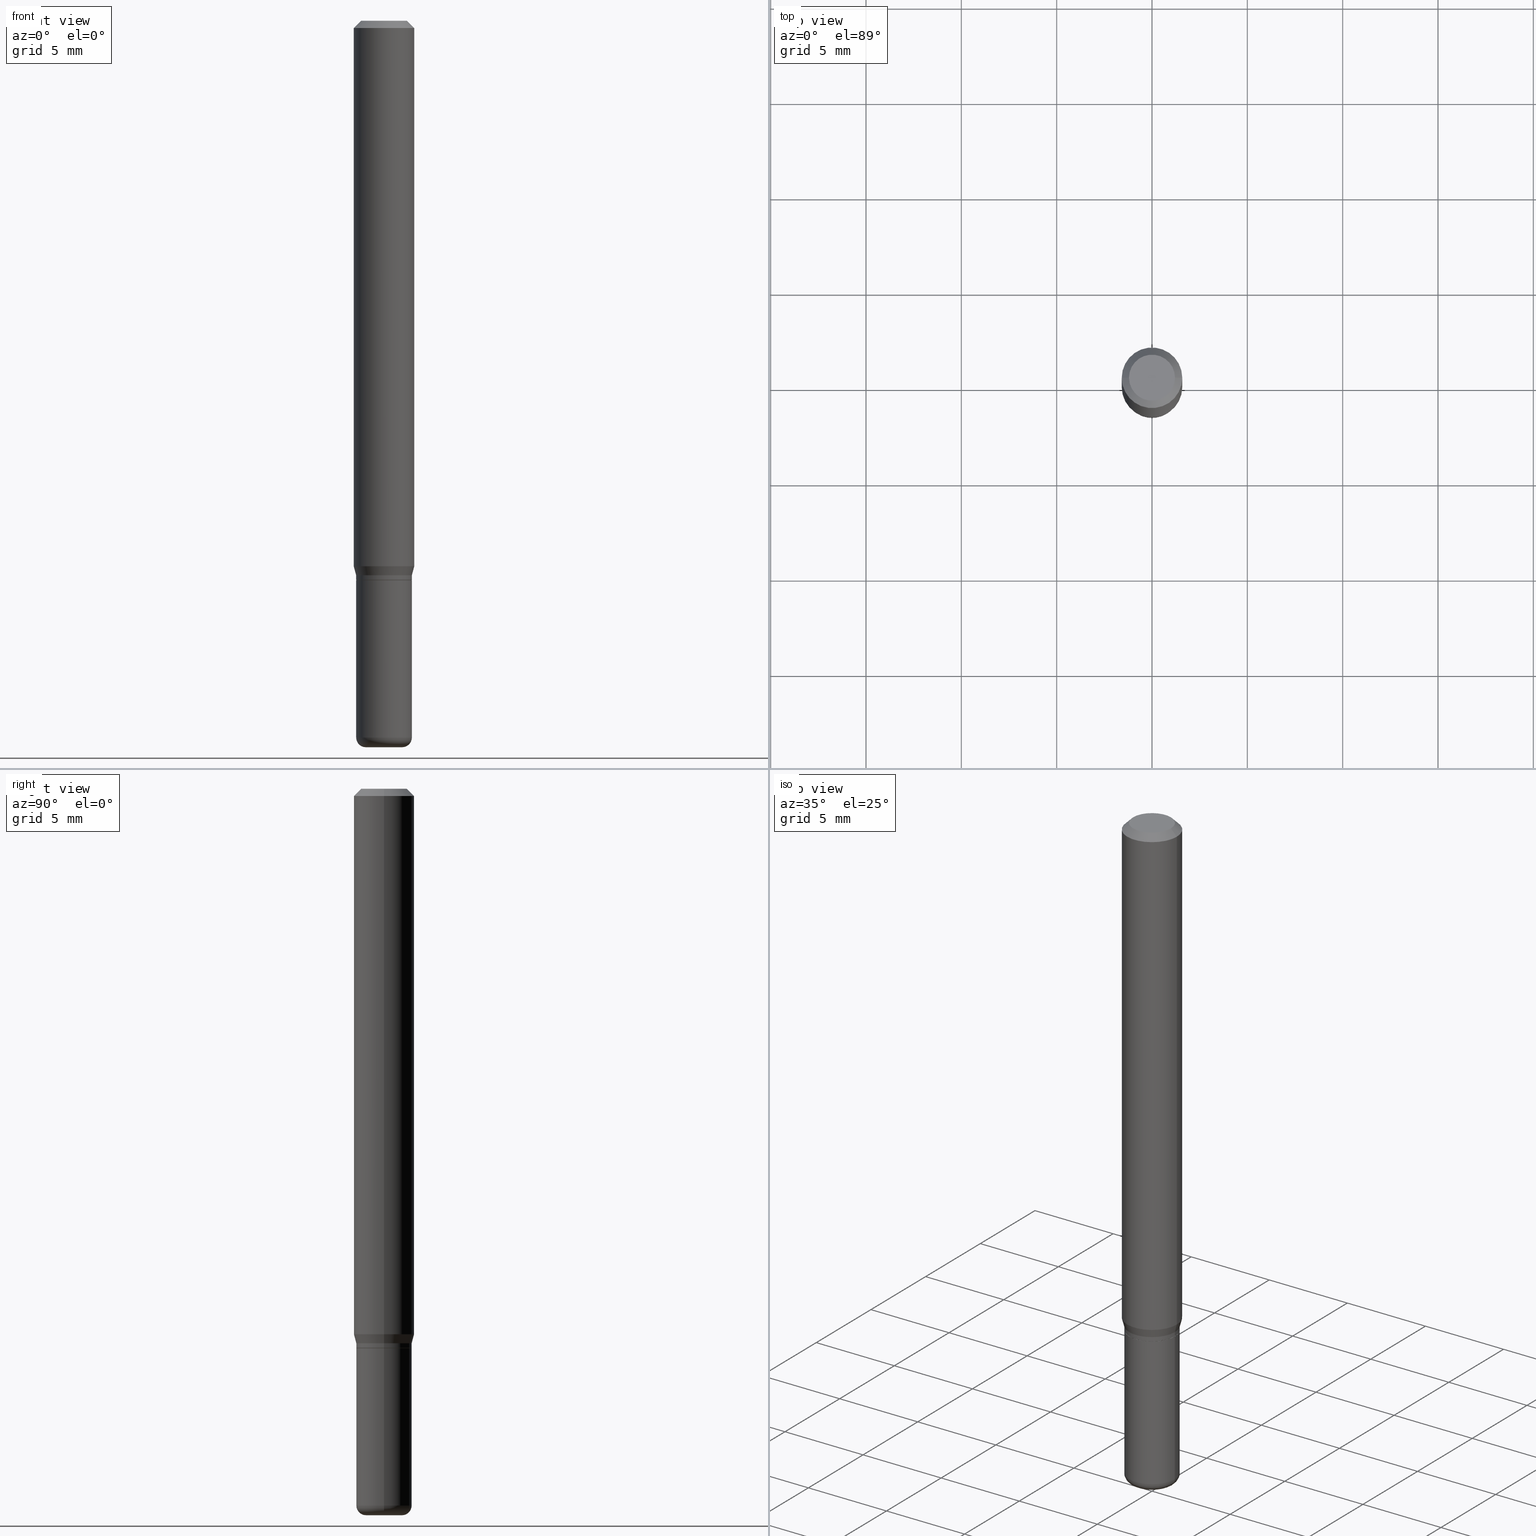
[diagram: canonical four-view strip — front | top / right | iso, engineering-drawing reading convention]
A machine part, canonical four-view strip (front | top / right | iso — engineering-drawing reading convention). The complete STEP part file that produces these views, byte-faithful:
ISO-10303-21;
HEADER;
FILE_DESCRIPTION (( 'STEP AP203' ),
    '1' );
FILE_NAME ('08769.STEP',
    '2024-02-29T20:56:56',
    ( '' ),
    ( '' ),
    'SwSTEP 2.0',
    'SolidWorks 2023',
    '' );
FILE_SCHEMA (( 'CONFIG_CONTROL_DESIGN' ));
ENDSEC;

DATA;
#1 = CALENDAR_DATE ( 2024, 29, 2 ) ;
#2 = EDGE_CURVE ( 'NONE', #177, #400, #466, .T. ) ;
#3 = CIRCLE ( 'NONE', #101, 0.05749999999999999556 ) ;
#4 = CALENDAR_DATE ( 2024, 29, 2 ) ;
#5 = CARTESIAN_POINT ( 'NONE',  ( 0.05750000000000000250, -4.015203539669603161E-16, 2.803801646082662941E-30 ) ) ;
#6 = VERTEX_POINT ( 'NONE', #494 ) ;
#7 = APPROVAL_STATUS ( 'not_yet_approved' ) ;
#8 = CARTESIAN_POINT ( 'NONE',  ( 2.824516471143833307E-29, -4.032660946363833383E-15, -1.155000000000000027 ) ) ;
#9 = DIRECTION ( 'NONE',  ( 1.000000000000000000, -6.982962677686265922E-15, 4.876176775795935793E-29 ) ) ;
#10 = DIRECTION ( 'NONE',  ( 1.000000000000000000, -6.982962677686265922E-15, 0.000000000000000000 ) ) ;
#11 = CARTESIAN_POINT ( 'NONE',  ( 2.824516471143833307E-29, -4.032660946363833383E-15, -1.155000000000000027 ) ) ;
#12 =( NAMED_UNIT ( * ) SI_UNIT ( $, .STERADIAN. ) SOLID_ANGLE_UNIT ( ) );
#13 = AXIS2_PLACEMENT_3D ( 'NONE', #60, #205, #439 ) ;
#14 = DIRECTION ( 'NONE',  ( -2.445468806185136597E-29, 3.491481338843145583E-15, 1.000000000000000000 ) ) ;
#15 = PERSON_AND_ORGANIZATION_ROLE ( 'creator' ) ;
#16 = CARTESIAN_POINT ( 'NONE',  ( 2.823293736740741066E-29, -4.030915205694411879E-15, -1.154500000000000304 ) ) ;
#17 = PLANE ( 'NONE',  #272 ) ;
#18 = CLOSED_SHELL ( 'NONE', ( #239, #507, #88, #302, #438, #168 ) ) ;
#19 = VECTOR ( 'NONE', #26, 39.37007874015748143 ) ;
#20 = CIRCLE ( 'NONE', #306, 0.05700000000000001593 ) ;
#21 = ORIENTED_EDGE ( 'NONE', *, *, #366, .T. ) ;
#22 = ORIENTED_EDGE ( 'NONE', *, *, #411, .T. ) ;
#23 = CARTESIAN_POINT ( 'NONE',  ( -0.06250000000000000000, 3.840629472727455270E-16, -0.01499999999999970281 ) ) ;
#24 = ORIENTED_EDGE ( 'NONE', *, *, #429, .F. ) ;
#25 = VERTEX_POINT ( 'NONE', #378 ) ;
#26 = DIRECTION ( 'NONE',  ( -2.445468806185136877E-29, 3.491481338843145188E-15, 1.000000000000000000 ) ) ;
#27 = CC_DESIGN_DATE_AND_TIME_ASSIGNMENT ( #319, #350, ( #407 ) ) ;
#28 = ORIENTED_EDGE ( 'NONE', *, *, #403, .F. ) ;
#29 = DIRECTION ( 'NONE',  ( -2.445468806185136597E-29, 3.491481338843145583E-15, 1.000000000000000000 ) ) ;
#30 = EDGE_CURVE ( 'NONE', #292, #223, #338, .T. ) ;
#31 = DIRECTION ( 'NONE',  ( 1.000000000000000000, -6.982962677686265922E-15, 0.000000000000000000 ) ) ;
#32 = AXIS2_PLACEMENT_3D ( 'NONE', #249, #29, #283 ) ;
#33 = SHAPE_DEFINITION_REPRESENTATION ( #401, #517 ) ;
#34 = CARTESIAN_POINT ( 'NONE',  ( 3.582686580359766038E-29, -5.359686688179453325E-15, -1.500000000000000222 ) ) ;
#35 = ORIENTED_EDGE ( 'NONE', *, *, #103, .F. ) ;
#36 = ORIENTED_EDGE ( 'NONE', *, *, #345, .F. ) ;
#37 = DIRECTION ( 'NONE',  ( -2.445468806185136877E-29, 3.491481338843145188E-15, 1.000000000000000000 ) ) ;
#38 = DIRECTION ( 'NONE',  ( 0.000000000000000000, 0.000000000000000000, 1.000000000000000000 ) ) ;
#39 = AXIS2_PLACEMENT_3D ( 'NONE', #211, #104, #423 ) ;
#40 = CARTESIAN_POINT ( 'NONE',  ( 2.824516471143833307E-29, -4.032660946363833383E-15, -1.155000000000000027 ) ) ;
#41 = DIRECTION ( 'NONE',  ( 1.000000000000000000, -6.982962677686266711E-15, 0.000000000000000000 ) ) ;
#42 = CARTESIAN_POINT ( 'NONE',  ( -0.04750000000000000749, 3.578768372314221353E-16, 2.731847993664239060E-16 ) ) ;
#43 = EDGE_CURVE ( 'NONE', #254, #292, #235, .T. ) ;
#44 = CALENDAR_DATE ( 2024, 29, 2 ) ;
#45 = DIRECTION ( 'NONE',  ( 1.000000000000000000, -6.982962677686266711E-15, 4.876176775795935793E-29 ) ) ;
#46 = CARTESIAN_POINT ( 'NONE',  ( -0.05750000000000000250, -4.191464590863786555E-15, -1.155000000000000027 ) ) ;
#47 = LOCAL_TIME ( 15, 56, 56.00000000000000000, #506 ) ;
#48 = DIRECTION ( 'NONE',  ( -1.000000000000000000, 7.105427357601014480E-15, 0.000000000000000000 ) ) ;
#49 = ORIENTED_EDGE ( 'NONE', *, *, #341, .F. ) ;
#50 = CC_DESIGN_PERSON_AND_ORGANIZATION_ASSIGNMENT ( #63, #290, ( #143 ) ) ;
#51 =( LENGTH_UNIT ( ) NAMED_UNIT ( * ) SI_UNIT ( $, .METRE. ) );
#52 = DIRECTION ( 'NONE',  ( 0.7071067811866199593, -2.468850131083015945E-15, 0.7071067811864750752 ) ) ;
#53 = CARTESIAN_POINT ( 'NONE',  ( 2.824516471143833307E-29, -4.032660946363833383E-15, -1.155000000000000027 ) ) ;
#54 = DIRECTION ( 'NONE',  ( 7.105427357601001859E-15, 1.000000000000000000, -3.491481338843145583E-15 ) ) ;
#55 = ORIENTED_EDGE ( 'NONE', *, *, #250, .F. ) ;
#56 = DIRECTION ( 'NONE',  ( -2.445468806185136597E-29, 3.491481338843145583E-15, 1.000000000000000000 ) ) ;
#57 = ORIENTED_EDGE ( 'NONE', *, *, #108, .F. ) ;
#58 = AXIS2_PLACEMENT_3D ( 'NONE', #232, #419, #163 ) ;
#59 = PERSON_AND_ORGANIZATION_ROLE ( 'creator' ) ;
#60 = CARTESIAN_POINT ( 'NONE',  ( 2.754428713916943180E-29, -3.932594204224195830E-15, -1.126339745962155803 ) ) ;
#61 = CARTESIAN_POINT ( 'NONE',  ( 3.668203209277632395E-31, -5.237222008264614861E-17, -0.01499999999999970281 ) ) ;
#62 = EDGE_CURVE ( 'NONE', #107, #254, #313, .T. ) ;
#63 = PERSON_AND_ORGANIZATION ( #127, #118 ) ;
#64 = ORIENTED_EDGE ( 'NONE', *, *, #138, .F. ) ;
#65 = CIRCLE ( 'NONE', #13, 0.06250000000000000000 ) ;
#66 = VECTOR ( 'NONE', #161, 39.37007874015748143 ) ;
#67 = CIRCLE ( 'NONE', #358, 0.04750000000000000749 ) ;
#68 = EDGE_LOOP ( 'NONE', ( #475, #484, #500, #420 ) ) ;
#69 = ORIENTED_EDGE ( 'NONE', *, *, #456, .T. ) ;
#70 = EDGE_LOOP ( 'NONE', ( #64, #136 ) ) ;
#71 = CIRCLE ( 'NONE', #349, 0.05750000000000003025 ) ;
#72 = ORIENTED_EDGE ( 'NONE', *, *, #256, .T. ) ;
#73 = LINE ( 'NONE', #381, #137 ) ;
#74 = APPLICATION_PROTOCOL_DEFINITION ( 'international standard', 'config_control_design', 1994, #443 ) ;
#75 = APPROVAL_PERSON_ORGANIZATION ( #481, #78, #295 ) ;
#76 = DIRECTION ( 'NONE',  ( -2.445468806185136597E-29, 3.491481338843145583E-15, 1.000000000000000000 ) ) ;
#77 = DIRECTION ( 'NONE',  ( 1.000000000000000000, -6.982962677686266711E-15, 4.852736867747365086E-29 ) ) ;
#78 = APPROVAL ( #284, 'UNSPECIFIED' ) ;
#79 = CARTESIAN_POINT ( 'NONE',  ( 2.824516471143833307E-29, -4.032660946363833383E-15, -1.155000000000000027 ) ) ;
#80 = DIRECTION ( 'NONE',  ( -0.2588190451025199623, 5.211531920934541575E-15, 0.9659258262890685343 ) ) ;
#81 = CARTESIAN_POINT ( 'NONE',  ( -6.680649051745406845E-45, 9.538196290434862081E-31, 2.731847993664263218E-16 ) ) ;
#82 = CYLINDRICAL_SURFACE ( 'NONE', #312, 0.05750000000000001638 ) ;
#83 = ADVANCED_FACE ( 'NONE', ( #192 ), #260, .T. ) ;
#84 = CARTESIAN_POINT ( 'NONE',  ( 2.800061783081981762E-29, -3.997746132975402522E-15, -1.145000000000000240 ) ) ;
#85 = ADVANCED_FACE ( 'NONE', ( #210 ), #448, .T. ) ;
#86 = CIRCLE ( 'NONE', #204, 0.05700000000000001593 ) ;
#87 = DIRECTION ( 'NONE',  ( -1.000000000000000000, 6.982962677686265922E-15, -4.876176775795935793E-29 ) ) ;
#88 = ADVANCED_FACE ( 'NONE', ( #248 ), #219, .F. ) ;
#89 = CARTESIAN_POINT ( 'NONE',  ( -0.05749999999999999556, -3.589184059913344947E-15, -1.145000000000000240 ) ) ;
#90 = CARTESIAN_POINT ( 'NONE',  ( 0.04750000000000000749, -4.035134999187568762E-16, 2.731847993664288856E-16 ) ) ;
#91 = FACE_OUTER_BOUND ( 'NONE', #334, .T. ) ;
#92 = CONICAL_SURFACE ( 'NONE', #142, 0.06250000000000000000, 0.7853981633974488341 ) ;
#93 = ADVANCED_FACE ( 'NONE', ( #251 ), #266, .T. ) ;
#94 = LOCAL_TIME ( 15, 56, 56.00000000000000000, #430 ) ;
#95 = LINE ( 'NONE', #352, #19 ) ;
#96 = CARTESIAN_POINT ( 'NONE',  ( 3.619293833154002365E-29, -5.167392381487854879E-15, -1.479999999999999982 ) ) ;
#97 = EDGE_CURVE ( 'NONE', #450, #206, #421, .T. ) ;
#98 = ORIENTED_EDGE ( 'NONE', *, *, #403, .T. ) ;
#99 = LINE ( 'NONE', #23, #398 ) ;
#100 = ORIENTED_EDGE ( 'NONE', *, *, #2, .T. ) ;
#101 = AXIS2_PLACEMENT_3D ( 'NONE', #84, #56, #10 ) ;
#102 = ORIENTED_EDGE ( 'NONE', *, *, #341, .T. ) ;
#103 = EDGE_CURVE ( 'NONE', #492, #177, #406, .T. ) ;
#104 = DIRECTION ( 'NONE',  ( -2.445468806185136597E-29, 3.491481338843145583E-15, 1.000000000000000000 ) ) ;
#105 = ORIENTED_EDGE ( 'NONE', *, *, #386, .F. ) ;
#106 = CARTESIAN_POINT ( 'NONE',  ( 0.000000000000000000, 0.000000000000000000, 0.000000000000000000 ) ) ;
#107 = VERTEX_POINT ( 'NONE', #230 ) ;
#108 = EDGE_CURVE ( 'NONE', #6, #25, #199, .T. ) ;
#109 = FACE_OUTER_BOUND ( 'NONE', #242, .T. ) ;
#110 = ORIENTED_EDGE ( 'NONE', *, *, #405, .F. ) ;
#111 = ADVANCED_FACE ( 'NONE', ( #237 ), #212, .T. ) ;
#112 = AXIS2_PLACEMENT_3D ( 'NONE', #455, #326, #335 ) ;
#113 = VERTEX_POINT ( 'NONE', #428 ) ;
#114 = DIRECTION ( 'NONE',  ( 1.000000000000000000, -6.982962677686265922E-15, 0.000000000000000000 ) ) ;
#115 = DIRECTION ( 'NONE',  ( 1.000000000000000000, 0.000000000000000000, 0.000000000000000000 ) ) ;
#116 = CARTESIAN_POINT ( 'NONE',  ( 3.668203209277704895E-29, -5.237222008264718177E-15, -1.500000000000000222 ) ) ;
#117 = CC_DESIGN_PERSON_AND_ORGANIZATION_ASSIGNMENT ( #426, #384, ( #255 ) ) ;
#118 = ORGANIZATION ( 'UNSPECIFIED', 'UNSPECIFIED', '' ) ;
#119 = LOCAL_TIME ( 15, 56, 56.00000000000000000, #233 ) ;
#120 = AXIS2_PLACEMENT_3D ( 'NONE', #116, #270, #41 ) ;
#121 = DIRECTION ( 'NONE',  ( -2.445468806185136597E-29, 3.491481338843145583E-15, 1.000000000000000000 ) ) ;
#122 = APPROVAL_ROLE ( '' ) ;
#123 = CARTESIAN_POINT ( 'NONE',  ( -0.06250000000000000000, 4.440892098500626162E-16, -3.074334431409316114E-30 ) ) ;
#124 = DIRECTION ( 'NONE',  ( 2.445468806185136597E-29, -3.491481338843145583E-15, -1.000000000000000000 ) ) ;
#125 = APPROVAL_DATE_TIME ( #473, #418 ) ;
#126 = LINE ( 'NONE', #279, #472 ) ;
#127 = PERSON ( 'UNSPECIFIED', 'UNSPECIFIED', 'UNSPECIFIED', ('UNSPECIFIED'), ('UNSPECIFIED'), ('UNSPECIFIED') ) ;
#128 = CIRCLE ( 'NONE', #222, 0.02000000000000002470 ) ;
#129 = APPROVAL_PERSON_ORGANIZATION ( #203, #418, #454 ) ;
#130 = CARTESIAN_POINT ( 'NONE',  ( 0.06250000000000000000, -4.888073874380378612E-16, -0.01499999999999970281 ) ) ;
#131 =( CONVERSION_BASED_UNIT ( 'INCH', #397 ) LENGTH_UNIT ( ) NAMED_UNIT ( #155 ) );
#132 = AXIS2_PLACEMENT_3D ( 'NONE', #422, #309, #469 ) ;
#133 = DIRECTION ( 'NONE',  ( -1.000000000000000000, 6.982962677686266711E-15, 0.000000000000000000 ) ) ;
#134 = EDGE_CURVE ( 'NONE', #424, #492, #20, .T. ) ;
#135 = CARTESIAN_POINT ( 'NONE',  ( 0.03750000000000000555, -5.499083108677953967E-15, -1.500000000000000222 ) ) ;
#136 = ORIENTED_EDGE ( 'NONE', *, *, #134, .F. ) ;
#137 = VECTOR ( 'NONE', #37, 39.37007874015748143 ) ;
#138 = EDGE_CURVE ( 'NONE', #492, #424, #86, .T. ) ;
#139 = EDGE_LOOP ( 'NONE', ( #410, #436, #267, #221 ) ) ;
#140 = ORIENTED_EDGE ( 'NONE', *, *, #386, .T. ) ;
#141 = ORIENTED_EDGE ( 'NONE', *, *, #287, .T. ) ;
#142 = AXIS2_PLACEMENT_3D ( 'NONE', #61, #124, #166 ) ;
#143 = PRODUCT_DEFINITION_FORMATION_WITH_SPECIFIED_SOURCE ( 'ANY', '', #255, .NOT_KNOWN. ) ;
#144 = ORIENTED_EDGE ( 'NONE', *, *, #2, .F. ) ;
#145 = DIRECTION ( 'NONE',  ( 0.7071067811865479058, -7.319954787623257623E-15, -0.7071067811865471286 ) ) ;
#146 = ADVANCED_FACE ( 'NONE', ( #281 ), #434, .T. ) ;
#147 = CARTESIAN_POINT ( 'NONE',  ( 3.668203209277632395E-31, -5.237222008264614861E-17, -0.01499999999999970281 ) ) ;
#148 = ORIENTED_EDGE ( 'NONE', *, *, #479, .F. ) ;
#149 = ORIENTED_EDGE ( 'NONE', *, *, #43, .F. ) ;
#150 = AXIS2_PLACEMENT_3D ( 'NONE', #514, #265, #181 ) ;
#151 = CC_DESIGN_APPROVAL ( #418, ( #407 ) ) ;
#152 = AXIS2_PLACEMENT_3D ( 'NONE', #16, #170, #176 ) ;
#153 = DIRECTION ( 'NONE',  ( -2.445468806185136877E-29, 3.491481338843145188E-15, 1.000000000000000000 ) ) ;
#154 = CARTESIAN_POINT ( 'NONE',  ( 2.800061783081981762E-29, -3.997746132975402522E-15, -1.145000000000000240 ) ) ;
#155 = DIMENSIONAL_EXPONENTS ( 1.000000000000000000, 0.000000000000000000, 0.000000000000000000, 0.000000000000000000, 0.000000000000000000, 0.000000000000000000, 0.000000000000000000 ) ;
#156 = CARTESIAN_POINT ( 'NONE',  ( -0.05750000000000003025, -4.191464590863786555E-15, -1.479999999999999982 ) ) ;
#157 = DIRECTION ( 'NONE',  ( 1.000000000000000000, -6.982962677686263555E-15, 0.000000000000000000 ) ) ;
#158 = AXIS2_PLACEMENT_3D ( 'NONE', #465, #121, #360 ) ;
#159 = LOCAL_TIME ( 15, 56, 56.00000000000000000, #257 ) ;
#160 = CARTESIAN_POINT ( 'NONE',  ( 0.05750000000000001638, -4.432435559661372688E-15, -1.154500000000000304 ) ) ;
#161 = DIRECTION ( 'NONE',  ( -2.445468806185136877E-29, 3.491481338843145188E-15, 1.000000000000000000 ) ) ;
#162 = ORIENTED_EDGE ( 'NONE', *, *, #345, .T. ) ;
#163 = DIRECTION ( 'NONE',  ( 1.000000000000000000, -6.982962677686272233E-15, 0.000000000000000000 ) ) ;
#164 = AXIS2_PLACEMENT_3D ( 'NONE', #392, #433, #87 ) ;
#165 =( NAMED_UNIT ( * ) PLANE_ANGLE_UNIT ( ) SI_UNIT ( $, .RADIAN. ) );
#166 = DIRECTION ( 'NONE',  ( -1.000000000000000000, 6.982962677686266711E-15, 0.000000000000000000 ) ) ;
#167 = DIRECTION ( 'NONE',  ( -2.445468806185136597E-29, 3.491481338843145583E-15, 1.000000000000000000 ) ) ;
#168 = ADVANCED_FACE ( 'NONE', ( #91 ), #452, .F. ) ;
#169 = EDGE_CURVE ( 'NONE', #220, #258, #499, .T. ) ;
#170 = DIRECTION ( 'NONE',  ( -2.445468806185136597E-29, 3.491481338843145583E-15, 1.000000000000000000 ) ) ;
#171 = AXIS2_PLACEMENT_3D ( 'NONE', #508, #447, #45 ) ;
#172 = COORDINATED_UNIVERSAL_TIME_OFFSET ( 5, 0, .BEHIND. ) ;
#173 = CARTESIAN_POINT ( 'NONE',  ( 0.05700000000000001593, -4.430689818991950396E-15, -1.155000000000000027 ) ) ;
#174 = VERTEX_POINT ( 'NONE', #385 ) ;
#175 = EDGE_LOOP ( 'NONE', ( #72, #22 ) ) ;
#176 = DIRECTION ( 'NONE',  ( 1.000000000000000000, -6.982962677686272233E-15, 0.000000000000000000 ) ) ;
#177 = VERTEX_POINT ( 'NONE', #160 ) ;
#178 = SECURITY_CLASSIFICATION_LEVEL ( 'unclassified' ) ;
#179 = ORIENTED_EDGE ( 'NONE', *, *, #321, .F. ) ;
#180 = CONICAL_SURFACE ( 'NONE', #382, 0.05749999999999999556, 0.2617993877991485197 ) ;
#181 = DIRECTION ( 'NONE',  ( 1.000000000000000000, -6.982962677686270655E-15, 0.000000000000000000 ) ) ;
#182 = EDGE_CURVE ( 'NONE', #206, #450, #67, .T. ) ;
#183 = DIRECTION ( 'NONE',  ( -2.438088387897960049E-29, 3.491481338843145188E-15, 1.000000000000000000 ) ) ;
#184 = ORIENTED_EDGE ( 'NONE', *, *, #243, .T. ) ;
#185 = ORIENTED_EDGE ( 'NONE', *, *, #62, .F. ) ;
#186 = CARTESIAN_POINT ( 'NONE',  ( 2.824516471143833307E-29, -4.032660946363833383E-15, -1.155000000000000027 ) ) ;
#187 = CARTESIAN_POINT ( 'NONE',  ( 0.06250000000000000000, -4.364351673553916694E-16, 3.047610484872459871E-30 ) ) ;
#188 = APPLICATION_PROTOCOL_DEFINITION ( 'international standard', 'config_control_design', 1994, #231 ) ;
#189 = CC_DESIGN_APPROVAL ( #78, ( #273 ) ) ;
#190 = VECTOR ( 'NONE', #52, 39.37007874015748143 ) ;
#191 = ADVANCED_FACE ( 'NONE', ( #228 ), #375, .T. ) ;
#192 = FACE_OUTER_BOUND ( 'NONE', #493, .T. ) ;
#193 = PERSON_AND_ORGANIZATION ( #127, #118 ) ;
#194 = CARTESIAN_POINT ( 'NONE',  ( -0.06250000000000000000, -1.548394002303358444E-15, -0.01499999999999970281 ) ) ;
#195 = AXIS2_PLACEMENT_3D ( 'NONE', #8, #236, #316 ) ;
#196 = CARTESIAN_POINT ( 'NONE',  ( 2.800061783081981762E-29, -3.997746132975402522E-15, -1.145000000000000240 ) ) ;
#197 = AXIS2_PLACEMENT_3D ( 'NONE', #496, #374, #31 ) ;
#198 = EDGE_LOOP ( 'NONE', ( #55, #464, #461, #416 ) ) ;
#199 = LINE ( 'NONE', #89, #262 ) ;
#200 = LINE ( 'NONE', #5, #66 ) ;
#201 = LINE ( 'NONE', #276, #328 ) ;
#202 = TOROIDAL_SURFACE ( 'NONE', #158, 0.03749999999999999861, 0.02000000000000002470 ) ;
#203 = PERSON_AND_ORGANIZATION ( #127, #118 ) ;
#204 = AXIS2_PLACEMENT_3D ( 'NONE', #11, #322, #480 ) ;
#205 = DIRECTION ( 'NONE',  ( -2.445468806185136597E-29, 3.491481338843145583E-15, 1.000000000000000000 ) ) ;
#206 = VERTEX_POINT ( 'NONE', #42 ) ;
#207 = FACE_OUTER_BOUND ( 'NONE', #70, .T. ) ;
#208 = EDGE_LOOP ( 'NONE', ( #57, #21, #102, #445 ) ) ;
#209 = CARTESIAN_POINT ( 'NONE',  ( 0.05750000000000003025, -5.568912735454815688E-15, -1.479999999999999982 ) ) ;
#210 = FACE_OUTER_BOUND ( 'NONE', #391, .T. ) ;
#211 = CARTESIAN_POINT ( 'NONE',  ( 0.000000000000000000, 0.000000000000000000, 0.000000000000000000 ) ) ;
#212 = CONICAL_SURFACE ( 'NONE', #509, 0.05700000000000001593, 0.7853981633975507526 ) ;
#213 = ORIENTED_EDGE ( 'NONE', *, *, #504, .T. ) ;
#214 = AXIS2_PLACEMENT_3D ( 'NONE', #425, #14, #444 ) ;
#215 = CC_DESIGN_APPROVAL ( #224, ( #143 ) ) ;
#216 = CLOSED_SHELL ( 'NONE', ( #85, #111, #264, #83, #396, #93, #354, #146, #331, #268, #191, #247 ) ) ;
#217 = ORIENTED_EDGE ( 'NONE', *, *, #182, .T. ) ;
#218 = VERTEX_POINT ( 'NONE', #46 ) ;
#219 = PLANE ( 'NONE',  #112 ) ;
#220 = VERTEX_POINT ( 'NONE', #194 ) ;
#221 = ORIENTED_EDGE ( 'NONE', *, *, #311, .F. ) ;
#222 = AXIS2_PLACEMENT_3D ( 'NONE', #390, #54, #48 ) ;
#223 = VERTEX_POINT ( 'NONE', #156 ) ;
#224 = APPROVAL ( #353, 'UNSPECIFIED' ) ;
#225 = DIRECTION ( 'NONE',  ( -2.445468806185136597E-29, 3.491481338843145583E-15, 1.000000000000000000 ) ) ;
#226 = AXIS2_PLACEMENT_3D ( 'NONE', #96, #252, #393 ) ;
#227 = CC_DESIGN_SECURITY_CLASSIFICATION ( #273, ( #143 ) ) ;
#228 = FACE_OUTER_BOUND ( 'NONE', #139, .T. ) ;
#229 = DIRECTION ( 'NONE',  ( 1.000000000000000000, -6.982962677686263555E-15, 0.000000000000000000 ) ) ;
#230 = CARTESIAN_POINT ( 'NONE',  ( -0.03750000000000000555, -4.864799395390239823E-15, -1.500000000000000222 ) ) ;
#231 = APPLICATION_CONTEXT ( 'configuration controlled 3d designs of mechanical parts and assemblies' ) ;
#232 = CARTESIAN_POINT ( 'NONE',  ( 2.823293736740741066E-29, -4.030915205694411879E-15, -1.154500000000000304 ) ) ;
#233 = COORDINATED_UNIVERSAL_TIME_OFFSET ( 5, 0, .BEHIND. ) ;
#234 = CIRCLE ( 'NONE', #214, 0.06250000000000000000 ) ;
#235 = CIRCLE ( 'NONE', #132, 0.02000000000000002470 ) ;
#236 = DIRECTION ( 'NONE',  ( -2.445468806185136597E-29, 3.491481338843145583E-15, 1.000000000000000000 ) ) ;
#237 = FACE_OUTER_BOUND ( 'NONE', #505, .T. ) ;
#238 = DIRECTION ( 'NONE',  ( 0.2588190451025199623, 1.565188264969633209E-15, 0.9659258262890685343 ) ) ;
#239 = ADVANCED_FACE ( 'NONE', ( #471 ), #202, .T. ) ;
#240 = APPROVAL_DATE_TIME ( #373, #78 ) ;
#241 = DIRECTION ( 'NONE',  ( 2.445468806185136597E-29, -3.491481338843145583E-15, -1.000000000000000000 ) ) ;
#242 = EDGE_LOOP ( 'NONE', ( #179, #69, #140, #303 ) ) ;
#243 = EDGE_CURVE ( 'NONE', #254, #107, #462, .T. ) ;
#244 = FACE_OUTER_BOUND ( 'NONE', #491, .T. ) ;
#245 = DATE_TIME_ROLE ( 'classification_date' ) ;
#246 = AXIS2_PLACEMENT_3D ( 'NONE', #196, #503, #474 ) ;
#247 = ADVANCED_FACE ( 'NONE', ( #369 ), #459, .T. ) ;
#248 = FACE_OUTER_BOUND ( 'NONE', #175, .T. ) ;
#249 = CARTESIAN_POINT ( 'NONE',  ( 3.668203209277632395E-31, -5.237222008264614861E-17, -0.01499999999999970281 ) ) ;
#250 = EDGE_CURVE ( 'NONE', #400, #6, #395, .T. ) ;
#251 = FACE_OUTER_BOUND ( 'NONE', #208, .T. ) ;
#252 = DIRECTION ( 'NONE',  ( -2.445468806185136597E-29, 3.491481338843145583E-15, 1.000000000000000000 ) ) ;
#253 = VECTOR ( 'NONE', #320, 39.37007874015748143 ) ;
#254 = VERTEX_POINT ( 'NONE', #135 ) ;
#255 = PRODUCT ( '08769', '08769', '', ( #308 ) ) ;
#256 = EDGE_CURVE ( 'NONE', #113, #218, #487, .T. ) ;
#257 = COORDINATED_UNIVERSAL_TIME_OFFSET ( 5, 0, .BEHIND. ) ;
#258 = VERTEX_POINT ( 'NONE', #130 ) ;
#259 = ORIENTED_EDGE ( 'NONE', *, *, #275, .T. ) ;
#260 = CYLINDRICAL_SURFACE ( 'NONE', #399, 0.06250000000000000000 ) ;
#261 = EDGE_LOOP ( 'NONE', ( #184, #162, #330, #149 ) ) ;
#262 = VECTOR ( 'NONE', #80, 39.37007874015748143 ) ;
#263 = CIRCLE ( 'NONE', #305, 0.05750000000000000250 ) ;
#264 = ADVANCED_FACE ( 'NONE', ( #402 ), #92, .T. ) ;
#265 = DIRECTION ( 'NONE',  ( -2.445468806185136597E-29, 3.491481338843145583E-15, 1.000000000000000000 ) ) ;
#266 = CONICAL_SURFACE ( 'NONE', #197, 0.05749999999999999556, 0.2617993877991485197 ) ;
#267 = ORIENTED_EDGE ( 'NONE', *, *, #103, .T. ) ;
#268 = ADVANCED_FACE ( 'NONE', ( #207 ), #17, .F. ) ;
#269 = CARTESIAN_POINT ( 'NONE',  ( -0.05700000000000001593, -3.625002359806465505E-15, -1.155000000000000027 ) ) ;
#270 = DIRECTION ( 'NONE',  ( -2.445468806185136597E-29, 3.491481338843145583E-15, 1.000000000000000000 ) ) ;
#271 = FACE_OUTER_BOUND ( 'NONE', #453, .T. ) ;
#272 = AXIS2_PLACEMENT_3D ( 'NONE', #485, #286, #441 ) ;
#273 = SECURITY_CLASSIFICATION ( '', '', #178 ) ;
#274 = AXIS2_PLACEMENT_3D ( 'NONE', #147, #300, #460 ) ;
#275 = EDGE_CURVE ( 'NONE', #292, #113, #95, .T. ) ;
#276 = CARTESIAN_POINT ( 'NONE',  ( -0.05700000000000001593, -3.627651586980575917E-15, -1.155000000000000027 ) ) ;
#277 = FACE_OUTER_BOUND ( 'NONE', #333, .T. ) ;
#278 = CARTESIAN_POINT ( 'NONE',  ( 0.000000000000000000, 0.000000000000000000, 0.000000000000000000 ) ) ;
#279 = CARTESIAN_POINT ( 'NONE',  ( 0.05749999999999999556, -4.399266486942362543E-15, -1.145000000000000240 ) ) ;
#280 = APPROVAL_DATE_TIME ( #332, #224 ) ;
#281 = FACE_OUTER_BOUND ( 'NONE', #68, .T. ) ;
#282 = ORIENTED_EDGE ( 'NONE', *, *, #138, .T. ) ;
#283 = DIRECTION ( 'NONE',  ( 1.000000000000000000, -6.982962677686266711E-15, 0.000000000000000000 ) ) ;
#284 = APPROVAL_STATUS ( 'not_yet_approved' ) ;
#285 = VECTOR ( 'NONE', #153, 39.37007874015748143 ) ;
#286 = DIRECTION ( 'NONE',  ( -2.438088387897960049E-29, 3.491481338843145188E-15, 1.000000000000000000 ) ) ;
#287 = EDGE_CURVE ( 'NONE', #450, #258, #502, .T. ) ;
#288 = FACE_OUTER_BOUND ( 'NONE', #394, .T. ) ;
#289 = CALENDAR_DATE ( 2024, 29, 2 ) ;
#290 = PERSON_AND_ORGANIZATION_ROLE ( 'design_supplier' ) ;
#291 = DIRECTION ( 'NONE',  ( -2.445468806185136597E-29, 3.491481338843145583E-15, 1.000000000000000000 ) ) ;
#292 = VERTEX_POINT ( 'NONE', #209 ) ;
#293 = ORIENTED_EDGE ( 'NONE', *, *, #108, .T. ) ;
#294 = TOROIDAL_SURFACE ( 'NONE', #226, 0.03749999999999999861, 0.02000000000000002470 ) ;
#295 = APPROVAL_ROLE ( '' ) ;
#296 = ORIENTED_EDGE ( 'NONE', *, *, #429, .T. ) ;
#297 = ORIENTED_EDGE ( 'NONE', *, *, #504, .F. ) ;
#298 = DIRECTION ( 'NONE',  ( -2.445468806185136597E-29, 3.491481338843145583E-15, 1.000000000000000000 ) ) ;
#299 = DIRECTION ( 'NONE',  ( 1.000000000000000000, -6.982962677686265922E-15, 4.876176775795935793E-29 ) ) ;
#300 = DIRECTION ( 'NONE',  ( -2.445468806185136597E-29, 3.491481338843145583E-15, 1.000000000000000000 ) ) ;
#301 = ORIENTED_EDGE ( 'NONE', *, *, #250, .T. ) ;
#302 = ADVANCED_FACE ( 'NONE', ( #359 ), #325, .T. ) ;
#303 = ORIENTED_EDGE ( 'NONE', *, *, #169, .F. ) ;
#304 = CARTESIAN_POINT ( 'NONE',  ( 3.668203209277704895E-29, -5.237222008264718177E-15, -1.500000000000000222 ) ) ;
#305 = AXIS2_PLACEMENT_3D ( 'NONE', #186, #76, #468 ) ;
#306 = AXIS2_PLACEMENT_3D ( 'NONE', #79, #356, #229 ) ;
#307 = DIRECTION ( 'NONE',  ( 1.000000000000000000, -6.982962677686270655E-15, 0.000000000000000000 ) ) ;
#308 = MECHANICAL_CONTEXT ( 'NONE', #443, 'mechanical' ) ;
#309 = DIRECTION ( 'NONE',  ( -6.982962677686266711E-15, -1.000000000000000000, 3.491481338843145583E-15 ) ) ;
#310 = CARTESIAN_POINT ( 'NONE',  ( -0.05750000000000001638, -3.622353132632354304E-15, -1.154500000000000304 ) ) ;
#311 = EDGE_CURVE ( 'NONE', #400, #177, #440, .T. ) ;
#312 = AXIS2_PLACEMENT_3D ( 'NONE', #278, #318, #9 ) ;
#313 = CIRCLE ( 'NONE', #120, 0.03750000000000000555 ) ;
#314 = DIRECTION ( 'NONE',  ( 1.000000000000000000, -6.982962677686263555E-15, 0.000000000000000000 ) ) ;
#315 = LINE ( 'NONE', #123, #253 ) ;
#316 = DIRECTION ( 'NONE',  ( 1.000000000000000000, -6.982962677686273810E-15, 0.000000000000000000 ) ) ;
#317 = CC_DESIGN_PERSON_AND_ORGANIZATION_ASSIGNMENT ( #357, #59, ( #407 ) ) ;
#318 = DIRECTION ( 'NONE',  ( -2.445468806185136597E-29, 3.491481338843145583E-15, 1.000000000000000000 ) ) ;
#319 = DATE_AND_TIME ( #44, #119 ) ;
#320 = DIRECTION ( 'NONE',  ( -2.445468806185136877E-29, 3.491481338843145188E-15, 1.000000000000000000 ) ) ;
#321 = EDGE_CURVE ( 'NONE', #25, #220, #315, .T. ) ;
#322 = DIRECTION ( 'NONE',  ( -2.445468806185136597E-29, 3.491481338843145583E-15, 1.000000000000000000 ) ) ;
#323 = ORIENTED_EDGE ( 'NONE', *, *, #321, .T. ) ;
#324 = ORIENTED_EDGE ( 'NONE', *, *, #275, .F. ) ;
#325 = CYLINDRICAL_SURFACE ( 'NONE', #497, 0.05750000000000001638 ) ;
#326 = DIRECTION ( 'NONE',  ( 2.438088387897960049E-29, -3.491481338843145188E-15, -1.000000000000000000 ) ) ;
#327 = AXIS2_PLACEMENT_3D ( 'NONE', #435, #241, #133 ) ;
#328 = VECTOR ( 'NONE', #431, 39.37007874015748143 ) ;
#329 = DIRECTION ( 'NONE',  ( -2.445468806185136597E-29, 3.491481338843145583E-15, 1.000000000000000000 ) ) ;
#330 = ORIENTED_EDGE ( 'NONE', *, *, #30, .F. ) ;
#331 = ADVANCED_FACE ( 'NONE', ( #277 ), #432, .F. ) ;
#332 = DATE_AND_TIME ( #4, #94 ) ;
#333 = EDGE_LOOP ( 'NONE', ( #217, #495 ) ) ;
#334 = EDGE_LOOP ( 'NONE', ( #346, #185 ) ) ;
#335 = DIRECTION ( 'NONE',  ( -1.000000000000000000, 6.982962677686265922E-15, -4.876176775795935793E-29 ) ) ;
#336 =( GEOMETRIC_REPRESENTATION_CONTEXT ( 3 ) GLOBAL_UNCERTAINTY_ASSIGNED_CONTEXT ( ( #344 ) ) GLOBAL_UNIT_ASSIGNED_CONTEXT ( ( #131, #165, #12 ) ) REPRESENTATION_CONTEXT ( 'NONE', 'WORKASPACE' ) );
#337 = ORIENTED_EDGE ( 'NONE', *, *, #351, .F. ) ;
#338 = CIRCLE ( 'NONE', #150, 0.05750000000000003025 ) ;
#339 = CARTESIAN_POINT ( 'NONE',  ( 0.000000000000000000, 0.000000000000000000, 0.000000000000000000 ) ) ;
#340 = CARTESIAN_POINT ( 'NONE',  ( -6.680649051745406845E-45, 9.538196290434862081E-31, 2.731847993664263218E-16 ) ) ;
#341 = EDGE_CURVE ( 'NONE', #367, #174, #126, .T. ) ;
#342 = DIRECTION ( 'NONE',  ( 1.000000000000000000, -6.982962677686265922E-15, 4.876176775795935793E-29 ) ) ;
#343 = ORIENTED_EDGE ( 'NONE', *, *, #30, .T. ) ;
#344 = UNCERTAINTY_MEASURE_WITH_UNIT (LENGTH_MEASURE( 1.000000000000000082E-05 ), #131, 'distance_accuracy_value', 'NONE');
#345 = EDGE_CURVE ( 'NONE', #107, #223, #128, .T. ) ;
#346 = ORIENTED_EDGE ( 'NONE', *, *, #243, .F. ) ;
#347 = AXIS2_PLACEMENT_3D ( 'NONE', #40, #512, #314 ) ;
#348 = CC_DESIGN_PERSON_AND_ORGANIZATION_ASSIGNMENT ( #193, #518, ( #273 ) ) ;
#349 = AXIS2_PLACEMENT_3D ( 'NONE', #511, #470, #307 ) ;
#350 = DATE_TIME_ROLE ( 'creation_date' ) ;
#351 = EDGE_CURVE ( 'NONE', #177, #367, #200, .T. ) ;
#352 = CARTESIAN_POINT ( 'NONE',  ( 0.05750000000000001638, -4.015203539669604147E-16, 2.803801646082663992E-30 ) ) ;
#353 = APPROVAL_STATUS ( 'not_yet_approved' ) ;
#354 = ADVANCED_FACE ( 'NONE', ( #109 ), #379, .T. ) ;
#355 = CARTESIAN_POINT ( 'NONE',  ( -0.05750000000000000250, 4.085620730620576246E-16, -2.828387676896570712E-30 ) ) ;
#356 = DIRECTION ( 'NONE',  ( -2.445468806185136597E-29, 3.491481338843145583E-15, 1.000000000000000000 ) ) ;
#357 = PERSON_AND_ORGANIZATION ( #127, #118 ) ;
#358 = AXIS2_PLACEMENT_3D ( 'NONE', #81, #225, #77 ) ;
#359 = FACE_OUTER_BOUND ( 'NONE', #417, .T. ) ;
#360 = DIRECTION ( 'NONE',  ( 1.000000000000000000, -6.982962677686270655E-15, 4.883557194083114583E-29 ) ) ;
#361 = DIRECTION ( 'NONE',  ( -2.445468806185136877E-29, 3.491481338843145188E-15, 1.000000000000000000 ) ) ;
#362 = EDGE_CURVE ( 'NONE', #367, #6, #365, .T. ) ;
#363 = CARTESIAN_POINT ( 'NONE',  ( 0.05700000000000001593, -4.430689818991950396E-15, -1.155000000000000027 ) ) ;
#364 = ORIENTED_EDGE ( 'NONE', *, *, #256, .F. ) ;
#365 = CIRCLE ( 'NONE', #246, 0.05749999999999999556 ) ;
#366 = EDGE_CURVE ( 'NONE', #6, #367, #3, .T. ) ;
#367 = VERTEX_POINT ( 'NONE', #478 ) ;
#368 = CARTESIAN_POINT ( 'NONE',  ( 0.000000000000000000, 0.000000000000000000, 0.000000000000000000 ) ) ;
#369 = FACE_OUTER_BOUND ( 'NONE', #198, .T. ) ;
#370 = ORIENTED_EDGE ( 'NONE', *, *, #43, .T. ) ;
#371 = CARTESIAN_POINT ( 'NONE',  ( 0.06250000000000000000, -4.811533449433669144E-16, -0.01499999999999970281 ) ) ;
#372 = EDGE_LOOP ( 'NONE', ( #380, #141, #213, #148 ) ) ;
#373 = DATE_AND_TIME ( #515, #159 ) ;
#374 = DIRECTION ( 'NONE',  ( -2.445468806185136597E-29, 3.491481338843145583E-15, 1.000000000000000000 ) ) ;
#375 = CONICAL_SURFACE ( 'NONE', #347, 0.05700000000000001593, 0.7853981633975507526 ) ;
#376 = ORIENTED_EDGE ( 'NONE', *, *, #411, .F. ) ;
#377 = LOCAL_TIME ( 15, 56, 56.00000000000000000, #172 ) ;
#378 = CARTESIAN_POINT ( 'NONE',  ( -0.06250000000000000000, -3.488504994374132819E-15, -1.126339745962155803 ) ) ;
#379 = CYLINDRICAL_SURFACE ( 'NONE', #171, 0.06250000000000000000 ) ;
#380 = ORIENTED_EDGE ( 'NONE', *, *, #97, .F. ) ;
#381 = CARTESIAN_POINT ( 'NONE',  ( -0.05750000000000001638, 4.085620730620577232E-16, -2.828387676896571763E-30 ) ) ;
#382 = AXIS2_PLACEMENT_3D ( 'NONE', #154, #427, #114 ) ;
#383 = EDGE_CURVE ( 'NONE', #424, #400, #201, .T. ) ;
#384 = PERSON_AND_ORGANIZATION_ROLE ( 'design_owner' ) ;
#385 = CARTESIAN_POINT ( 'NONE',  ( 0.06250000000000000000, -4.369029371579587499E-15, -1.126339745962155803 ) ) ;
#386 = EDGE_CURVE ( 'NONE', #174, #258, #388, .T. ) ;
#387 = VECTOR ( 'NONE', #145, 39.37007874015748143 ) ;
#388 = LINE ( 'NONE', #187, #285 ) ;
#389 = PERSON_AND_ORGANIZATION ( #127, #118 ) ;
#390 = CARTESIAN_POINT ( 'NONE',  ( -0.03749999999999999861, -4.900938855577818255E-15, -1.479999999999999982 ) ) ;
#391 = EDGE_LOOP ( 'NONE', ( #100, #301, #501, #337 ) ) ;
#392 = CARTESIAN_POINT ( 'NONE',  ( 3.316907271900976589E-16, 0.04750000000000000749, -2.925296391183627249E-17 ) ) ;
#393 = DIRECTION ( 'NONE',  ( 1.000000000000000000, -6.982962677686270655E-15, 4.883557194083114583E-29 ) ) ;
#394 = EDGE_LOOP ( 'NONE', ( #36, #490, #370, #28 ) ) ;
#395 = LINE ( 'NONE', #355, #449 ) ;
#396 = ADVANCED_FACE ( 'NONE', ( #271 ), #180, .T. ) ;
#397 = LENGTH_MEASURE_WITH_UNIT ( LENGTH_MEASURE( 0.02539999999999999897 ), #51 );
#398 = VECTOR ( 'NONE', #408, 39.37007874015748143 ) ;
#399 = AXIS2_PLACEMENT_3D ( 'NONE', #339, #298, #458 ) ;
#400 = VERTEX_POINT ( 'NONE', #310 ) ;
#401 = PRODUCT_DEFINITION_SHAPE ( 'NONE', 'NONE',  #407 ) ;
#402 = FACE_OUTER_BOUND ( 'NONE', #372, .T. ) ;
#403 = EDGE_CURVE ( 'NONE', #223, #292, #71, .T. ) ;
#404 = DATE_AND_TIME ( #289, #377 ) ;
#405 = EDGE_CURVE ( 'NONE', #223, #218, #73, .T. ) ;
#406 = LINE ( 'NONE', #173, #190 ) ;
#407 = PRODUCT_DEFINITION ( 'UNKNOWN', '', #143, #486 ) ;
#408 = DIRECTION ( 'NONE',  ( -0.7071067811865479058, 2.468850131082261005E-15, -0.7071067811865471286 ) ) ;
#409 = CIRCLE ( 'NONE', #32, 0.06250000000000000000 ) ;
#410 = ORIENTED_EDGE ( 'NONE', *, *, #383, .F. ) ;
#411 = EDGE_CURVE ( 'NONE', #218, #113, #263, .T. ) ;
#412 = DIRECTION ( 'NONE',  ( 1.000000000000000000, -6.982962677686266711E-15, 0.000000000000000000 ) ) ;
#413 = ORIENTED_EDGE ( 'NONE', *, *, #362, .T. ) ;
#414 = AXIS2_PLACEMENT_3D ( 'NONE', #368, #329, #415 ) ;
#415 = DIRECTION ( 'NONE',  ( 1.000000000000000000, -6.982962677686265922E-15, 4.876176775795935232E-29 ) ) ;
#416 = ORIENTED_EDGE ( 'NONE', *, *, #366, .F. ) ;
#417 = EDGE_LOOP ( 'NONE', ( #110, #98, #259, #376 ) ) ;
#418 = APPROVAL ( #7, 'UNSPECIFIED' ) ;
#419 = DIRECTION ( 'NONE',  ( -2.445468806185136597E-29, 3.491481338843145583E-15, 1.000000000000000000 ) ) ;
#420 = ORIENTED_EDGE ( 'NONE', *, *, #169, .T. ) ;
#421 = CIRCLE ( 'NONE', #489, 0.04750000000000000749 ) ;
#422 = CARTESIAN_POINT ( 'NONE',  ( 0.03749999999999999861, -5.429253481901090669E-15, -1.479999999999999982 ) ) ;
#423 = DIRECTION ( 'NONE',  ( 1.000000000000000000, -6.982962677686265922E-15, 4.876176775795935232E-29 ) ) ;
#424 = VERTEX_POINT ( 'NONE', #269 ) ;
#425 = CARTESIAN_POINT ( 'NONE',  ( 2.754428713916943180E-29, -3.932594204224195830E-15, -1.126339745962155803 ) ) ;
#426 = PERSON_AND_ORGANIZATION ( #127, #118 ) ;
#427 = DIRECTION ( 'NONE',  ( -2.445468806185136597E-29, 3.491481338843145583E-15, 1.000000000000000000 ) ) ;
#428 = CARTESIAN_POINT ( 'NONE',  ( 0.05750000000000000250, -4.434181300330794192E-15, -1.155000000000000027 ) ) ;
#429 = EDGE_CURVE ( 'NONE', #174, #25, #234, .T. ) ;
#430 = COORDINATED_UNIVERSAL_TIME_OFFSET ( 5, 0, .BEHIND. ) ;
#431 = DIRECTION ( 'NONE',  ( -0.7071067811866199593, 7.493145998870616062E-15, 0.7071067811864750752 ) ) ;
#432 = PLANE ( 'NONE',  #164 ) ;
#433 = DIRECTION ( 'NONE',  ( 2.438088387897960049E-29, -3.491481338843145188E-15, -1.000000000000000000 ) ) ;
#434 = CONICAL_SURFACE ( 'NONE', #327, 0.06250000000000000000, 0.7853981633974488341 ) ;
#435 = CARTESIAN_POINT ( 'NONE',  ( 3.668203209277632395E-31, -5.237222008264614861E-17, -0.01499999999999970281 ) ) ;
#436 = ORIENTED_EDGE ( 'NONE', *, *, #134, .T. ) ;
#437 = CC_DESIGN_PERSON_AND_ORGANIZATION_ASSIGNMENT ( #482, #15, ( #143 ) ) ;
#438 = ADVANCED_FACE ( 'NONE', ( #288 ), #294, .T. ) ;
#439 = DIRECTION ( 'NONE',  ( 1.000000000000000000, -6.982962677686262766E-15, 0.000000000000000000 ) ) ;
#440 = CIRCLE ( 'NONE', #58, 0.05750000000000001638 ) ;
#441 = DIRECTION ( 'NONE',  ( 1.000000000000000000, -6.982962677686265922E-15, 4.876176775795935793E-29 ) ) ;
#442 = DIRECTION ( 'NONE',  ( 1.000000000000000000, -6.982962677686266711E-15, 4.852736867747365086E-29 ) ) ;
#443 = APPLICATION_CONTEXT ( 'configuration controlled 3d designs of mechanical parts and assemblies' ) ;
#444 = DIRECTION ( 'NONE',  ( 1.000000000000000000, -6.982962677686262766E-15, 0.000000000000000000 ) ) ;
#445 = ORIENTED_EDGE ( 'NONE', *, *, #456, .F. ) ;
#446 = ORIENTED_EDGE ( 'NONE', *, *, #383, .T. ) ;
#447 = DIRECTION ( 'NONE',  ( -2.445468806185136597E-29, 3.491481338843145583E-15, 1.000000000000000000 ) ) ;
#448 = CYLINDRICAL_SURFACE ( 'NONE', #414, 0.05750000000000000250 ) ;
#449 = VECTOR ( 'NONE', #361, 39.37007874015748143 ) ;
#450 = VERTEX_POINT ( 'NONE', #90 ) ;
#451 = DIRECTION ( 'NONE',  ( -2.445468806185136597E-29, 3.491481338843145583E-15, 1.000000000000000000 ) ) ;
#452 = PLANE ( 'NONE',  #513 ) ;
#453 = EDGE_LOOP ( 'NONE', ( #413, #293, #24, #49 ) ) ;
#454 = APPROVAL_ROLE ( '' ) ;
#455 = CARTESIAN_POINT ( 'NONE',  ( 4.015203539669885672E-16, 0.05749999999999597100, -1.155000000000000249 ) ) ;
#456 = EDGE_CURVE ( 'NONE', #25, #174, #65, .T. ) ;
#457 = ORIENTED_EDGE ( 'NONE', *, *, #405, .T. ) ;
#458 = DIRECTION ( 'NONE',  ( 1.000000000000000000, -6.982962677686266711E-15, 4.876176775795935793E-29 ) ) ;
#459 = CYLINDRICAL_SURFACE ( 'NONE', #39, 0.05750000000000000250 ) ;
#460 = DIRECTION ( 'NONE',  ( 1.000000000000000000, -6.982962677686266711E-15, 0.000000000000000000 ) ) ;
#461 = ORIENTED_EDGE ( 'NONE', *, *, #351, .T. ) ;
#462 = CIRCLE ( 'NONE', #510, 0.03750000000000000555 ) ;
#463 = DIRECTION ( 'NONE',  ( -2.445468806185136597E-29, 3.491481338843145583E-15, 1.000000000000000000 ) ) ;
#464 = ORIENTED_EDGE ( 'NONE', *, *, #311, .T. ) ;
#465 = CARTESIAN_POINT ( 'NONE',  ( 3.619293833154002365E-29, -5.167392381487854879E-15, -1.479999999999999982 ) ) ;
#466 = CIRCLE ( 'NONE', #152, 0.05750000000000001638 ) ;
#467 = CC_DESIGN_DATE_AND_TIME_ASSIGNMENT ( #404, #245, ( #273 ) ) ;
#468 = DIRECTION ( 'NONE',  ( 1.000000000000000000, -6.982962677686273810E-15, 0.000000000000000000 ) ) ;
#469 = DIRECTION ( 'NONE',  ( 1.000000000000000000, -6.982962677686275388E-15, 0.000000000000000000 ) ) ;
#470 = DIRECTION ( 'NONE',  ( -2.445468806185136597E-29, 3.491481338843145583E-15, 1.000000000000000000 ) ) ;
#471 = FACE_OUTER_BOUND ( 'NONE', #261, .T. ) ;
#472 = VECTOR ( 'NONE', #238, 39.37007874015748143 ) ;
#473 = DATE_AND_TIME ( #1, #47 ) ;
#474 = DIRECTION ( 'NONE',  ( 1.000000000000000000, -6.982962677686265922E-15, 0.000000000000000000 ) ) ;
#475 = ORIENTED_EDGE ( 'NONE', *, *, #287, .F. ) ;
#476 = AXIS2_PLACEMENT_3D ( 'NONE', #106, #38, #115 ) ;
#477 = APPROVAL_PERSON_ORGANIZATION ( #389, #224, #122 ) ;
#478 = CARTESIAN_POINT ( 'NONE',  ( 0.05749999999999999556, -4.399266486942362543E-15, -1.145000000000000240 ) ) ;
#479 = EDGE_CURVE ( 'NONE', #206, #220, #99, .T. ) ;
#480 = DIRECTION ( 'NONE',  ( 1.000000000000000000, -6.982962677686263555E-15, 0.000000000000000000 ) ) ;
#481 = PERSON_AND_ORGANIZATION ( #127, #118 ) ;
#482 = PERSON_AND_ORGANIZATION ( #127, #118 ) ;
#483 = MANIFOLD_SOLID_BREP ( 'Body-Move/Copy2[1]', #18 ) ;
#484 = ORIENTED_EDGE ( 'NONE', *, *, #182, .F. ) ;
#485 = CARTESIAN_POINT ( 'NONE',  ( 2.824516471143833307E-29, -4.032660946363833383E-15, -1.155000000000000027 ) ) ;
#486 = DESIGN_CONTEXT ( 'detailed design', #231, 'design' ) ;
#487 = CIRCLE ( 'NONE', #195, 0.05750000000000000250 ) ;
#488 = MANIFOLD_SOLID_BREP ( 'Body-Move/Copy2[2]', #216 ) ;
#489 = AXIS2_PLACEMENT_3D ( 'NONE', #340, #291, #442 ) ;
#490 = ORIENTED_EDGE ( 'NONE', *, *, #62, .T. ) ;
#491 = EDGE_LOOP ( 'NONE', ( #343, #457, #364, #324 ) ) ;
#492 = VERTEX_POINT ( 'NONE', #363 ) ;
#493 = EDGE_LOOP ( 'NONE', ( #296, #323, #297, #105 ) ) ;
#494 = CARTESIAN_POINT ( 'NONE',  ( -0.05749999999999999556, -3.538844527143738686E-15, -1.145000000000000240 ) ) ;
#495 = ORIENTED_EDGE ( 'NONE', *, *, #97, .T. ) ;
#496 = CARTESIAN_POINT ( 'NONE',  ( 2.800061783081981762E-29, -3.997746132975402522E-15, -1.145000000000000240 ) ) ;
#497 = AXIS2_PLACEMENT_3D ( 'NONE', #516, #167, #299 ) ;
#498 = PRODUCT_RELATED_PRODUCT_CATEGORY ( 'detail', '', ( #255 ) ) ;
#499 = CIRCLE ( 'NONE', #274, 0.06250000000000000000 ) ;
#500 = ORIENTED_EDGE ( 'NONE', *, *, #479, .T. ) ;
#501 = ORIENTED_EDGE ( 'NONE', *, *, #362, .F. ) ;
#502 = LINE ( 'NONE', #371, #387 ) ;
#503 = DIRECTION ( 'NONE',  ( -2.445468806185136597E-29, 3.491481338843145583E-15, 1.000000000000000000 ) ) ;
#504 = EDGE_CURVE ( 'NONE', #258, #220, #409, .T. ) ;
#505 = EDGE_LOOP ( 'NONE', ( #282, #446, #144, #35 ) ) ;
#506 = COORDINATED_UNIVERSAL_TIME_OFFSET ( 5, 0, .BEHIND. ) ;
#507 = ADVANCED_FACE ( 'NONE', ( #244 ), #82, .T. ) ;
#508 = CARTESIAN_POINT ( 'NONE',  ( 0.000000000000000000, 0.000000000000000000, 0.000000000000000000 ) ) ;
#509 = AXIS2_PLACEMENT_3D ( 'NONE', #53, #463, #157 ) ;
#510 = AXIS2_PLACEMENT_3D ( 'NONE', #304, #451, #412 ) ;
#511 = CARTESIAN_POINT ( 'NONE',  ( 3.619293833154002365E-29, -5.167392381487854879E-15, -1.479999999999999982 ) ) ;
#512 = DIRECTION ( 'NONE',  ( -2.445468806185136597E-29, 3.491481338843145583E-15, 1.000000000000000000 ) ) ;
#513 = AXIS2_PLACEMENT_3D ( 'NONE', #34, #183, #342 ) ;
#514 = CARTESIAN_POINT ( 'NONE',  ( 3.619293833154002365E-29, -5.167392381487854879E-15, -1.479999999999999982 ) ) ;
#515 = CALENDAR_DATE ( 2024, 29, 2 ) ;
#516 = CARTESIAN_POINT ( 'NONE',  ( 0.000000000000000000, 0.000000000000000000, 0.000000000000000000 ) ) ;
#517 = ADVANCED_BREP_SHAPE_REPRESENTATION ( '08769', ( #483, #488, #476 ), #336 ) ;
#518 = PERSON_AND_ORGANIZATION_ROLE ( 'classification_officer' ) ;
ENDSEC;
END-ISO-10303-21;
